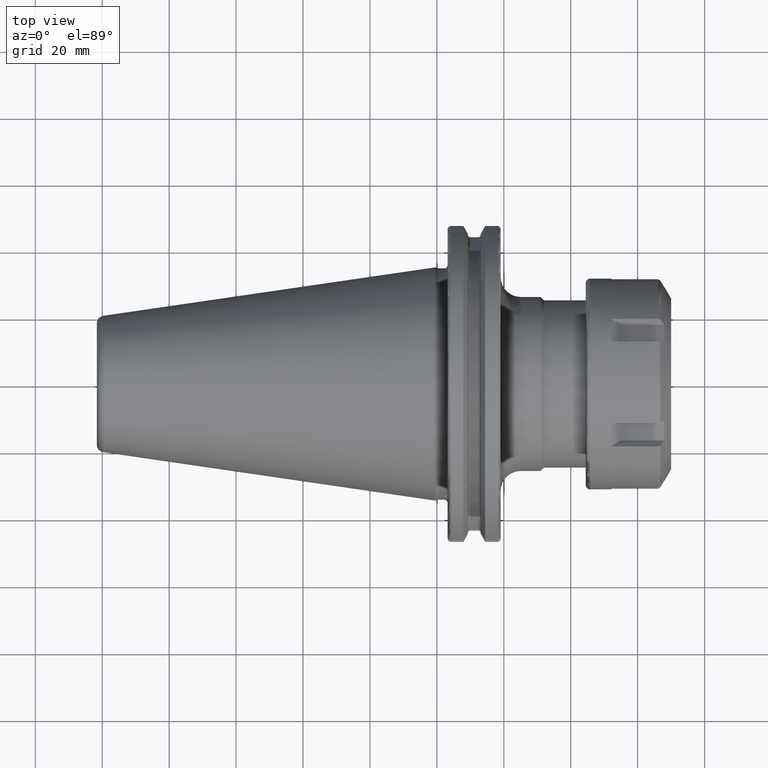
[diagram: clean part render]
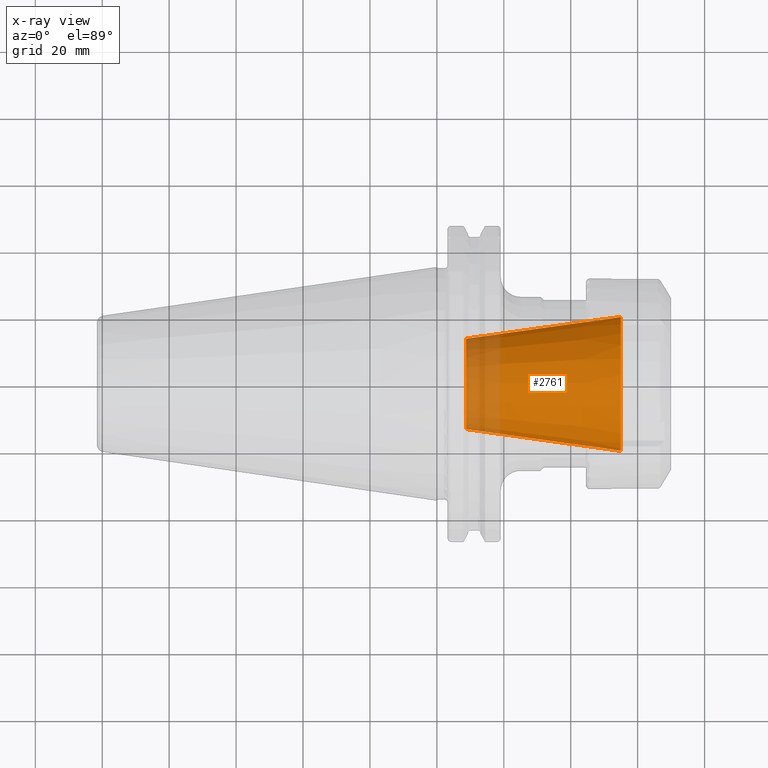
[diagram: x-ray — body ghosted, one internal face saturated and labeled with its STEP entity id]
A machine part, top view, then the same camera in x-ray: the body is ghosted and one INTERNAL B-rep face — a face not visible from any outside direction — is saturated and labeled: STEP entity #2761.
In plain terms, the highlighted conical surface has half-angle 8 deg.
Its self-contained STEP definition (entity closure, byte-faithful):
#1066=CARTESIAN_POINT('',(5.5E1,0.E0,0.E0));
#1067=DIRECTION('',(1.E0,0.E0,0.E0));
#1068=DIRECTION('',(0.E0,1.E0,0.E0));
#1069=AXIS2_PLACEMENT_3D('',#1066,#1067,#1068);
#1076=DIRECTION('',(-9.902680687416E-1,-1.391731009601E-1,0.E0));
#1077=VECTOR('',#1076,4.670442747313E1);
#1078=CARTESIAN_POINT('',(5.5E1,2.E1,0.E0));
#1079=LINE('',#1078,#1077);
#1080=DIRECTION('',(-9.902680687416E-1,1.391731009601E-1,0.E0));
#1081=VECTOR('',#1080,4.670442747313E1);
#1082=CARTESIAN_POINT('',(5.5E1,-2.E1,0.E0));
#1083=LINE('',#1082,#1081);
#1097=CARTESIAN_POINT('',(8.750096804503E0,0.E0,0.E0));
#1098=DIRECTION('',(1.E0,0.E0,0.E0));
#1099=DIRECTION('',(0.E0,1.E0,0.E0));
#1100=AXIS2_PLACEMENT_3D('',#1097,#1098,#1099);
#1535=CARTESIAN_POINT('',(8.750096804503E0,1.35E1,0.E0));
#1537=VERTEX_POINT('',#1535);
#1539=CARTESIAN_POINT('',(8.750096804503E0,-1.35E1,0.E0));
#1541=VERTEX_POINT('',#1539);
#1543=CARTESIAN_POINT('',(5.5E1,2.E1,0.E0));
#1544=VERTEX_POINT('',#1543);
#1545=CARTESIAN_POINT('',(5.5E1,-2.E1,0.E0));
#1546=VERTEX_POINT('',#1545);
#2747=CARTESIAN_POINT('',(3.187504840225E1,0.E0,0.E0));
#2748=DIRECTION('',(1.E0,0.E0,0.E0));
#2749=DIRECTION('',(0.E0,-1.E0,0.E0));
#2750=AXIS2_PLACEMENT_3D('',#2747,#2748,#2749);
#2751=CONICAL_SURFACE('',#2750,1.675E1,8.E0);
#2753=ORIENTED_EDGE('',*,*,#2752,.T.);
#2755=ORIENTED_EDGE('',*,*,#2754,.T.);
#2757=ORIENTED_EDGE('',*,*,#2756,.F.);
#2758=ORIENTED_EDGE('',*,*,#2740,.F.);
#2759=EDGE_LOOP('',(#2753,#2755,#2757,#2758));
#2760=FACE_OUTER_BOUND('',#2759,.F.);
#2761=ADVANCED_FACE('',(#2760),#2751,.F.);
#1070=CIRCLE('',#1069,2.E1);
#1101=CIRCLE('',#1100,1.35E1);
#2740=EDGE_CURVE('',#1544,#1546,#1070,.T.);
#2752=EDGE_CURVE('',#1544,#1537,#1079,.T.);
#2754=EDGE_CURVE('',#1537,#1541,#1101,.T.);
#2756=EDGE_CURVE('',#1546,#1541,#1083,.T.);